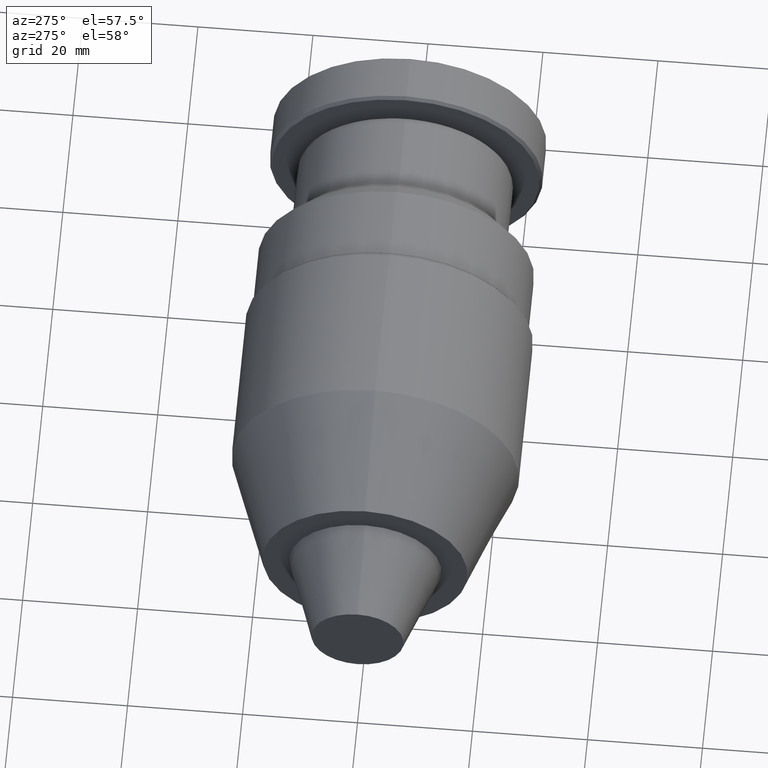
[diagram: clean part render]
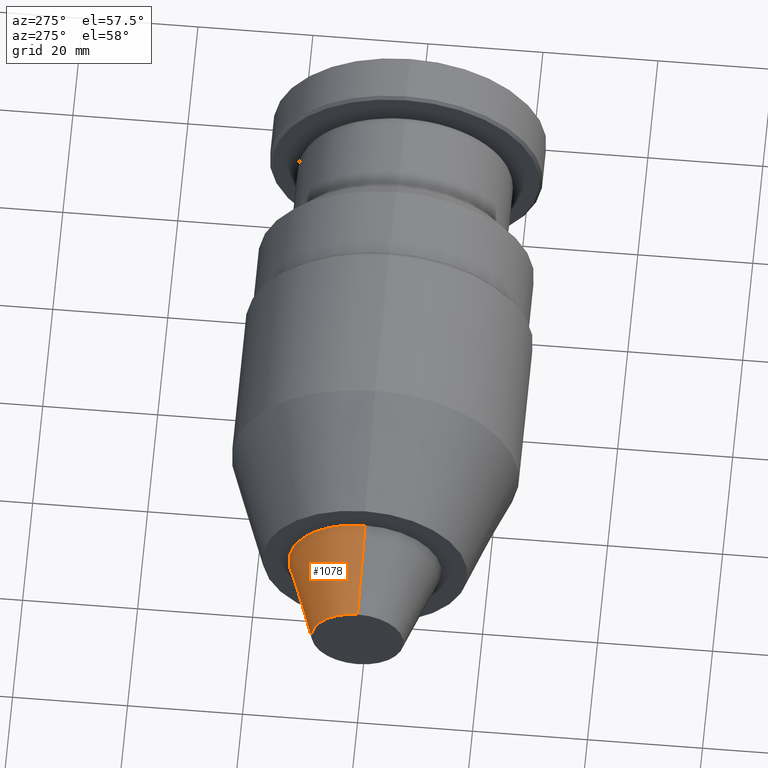
[diagram: same view with one face highlighted and labeled with its STEP entity id]
A machine part, auxiliary view. The second image highlights one B-rep face of the part: STEP entity #1078.
In plain terms, the highlighted conical surface has half-angle 19.471 deg.
Its self-contained STEP definition (entity closure, byte-faithful):
#12 = VERTEX_POINT ( 'NONE', #1147 ) ;
#43 = AXIS2_PLACEMENT_3D ( 'NONE', #527, #1037, #1421 ) ;
#81 = ORIENTED_EDGE ( 'NONE', *, *, #689, .T. ) ;
#144 = FACE_OUTER_BOUND ( 'NONE', #897, .T. ) ;
#297 = CARTESIAN_POINT ( 'NONE',  ( 0.0000000000000000000, 9.797174393178825700E-016, 8.000000000000000000 ) ) ;
#319 = CONICAL_SURFACE ( 'NONE', #1012, 8.000000000000000000, 0.3398368983786193600 ) ;
#349 = DIRECTION ( 'NONE',  ( 1.000000000000000000, 0.0000000000000000000, -0.0000000000000000000 ) ) ;
#362 = VECTOR ( 'NONE', #1432, 1000.000000000000000 ) ;
#397 = EDGE_CURVE ( 'NONE', #423, #591, #1210, .T. ) ;
#423 = VERTEX_POINT ( 'NONE', #1507 ) ;
#427 = AXIS2_PLACEMENT_3D ( 'NONE', #994, #742, #491 ) ;
#490 = CARTESIAN_POINT ( 'NONE',  ( 14.99999999999990200, 1.629184458605959300E-015, 13.30330067199996700 ) ) ;
#491 = DIRECTION ( 'NONE',  ( 0.0000000000000000000, 0.0000000000000000000, -1.000000000000000000 ) ) ;
#527 = CARTESIAN_POINT ( 'NONE',  ( 14.99999999999990200, 0.0000000000000000000, 0.0000000000000000000 ) ) ;
#567 = VERTEX_POINT ( 'NONE', #490 ) ;
#591 = VERTEX_POINT ( 'NONE', #670 ) ;
#638 = EDGE_CURVE ( 'NONE', #591, #12, #1194, .T. ) ;
#670 = CARTESIAN_POINT ( 'NONE',  ( 0.0000000000000000000, 0.0000000000000000000, -8.000000000000000000 ) ) ;
#689 = EDGE_CURVE ( 'NONE', #423, #567, #744, .T. ) ;
#701 = EDGE_CURVE ( 'NONE', #12, #567, #1382, .T. ) ;
#742 = DIRECTION ( 'NONE',  ( -1.000000000000000000, -0.0000000000000000000, 0.0000000000000000000 ) ) ;
#744 = LINE ( 'NONE', #297, #1559 ) ;
#827 = ORIENTED_EDGE ( 'NONE', *, *, #638, .F. ) ;
#897 = EDGE_LOOP ( 'NONE', ( #1152, #81, #1320, #827 ) ) ;
#917 = CARTESIAN_POINT ( 'NONE',  ( 0.0000000000000000000, 0.0000000000000000000, -8.000000000000000000 ) ) ;
#994 = CARTESIAN_POINT ( 'NONE',  ( 0.0000000000000000000, 0.0000000000000000000, 0.0000000000000000000 ) ) ;
#1012 = AXIS2_PLACEMENT_3D ( 'NONE', #1161, #349, #1440 ) ;
#1037 = DIRECTION ( 'NONE',  ( 1.000000000000000000, 0.0000000000000000000, -0.0000000000000000000 ) ) ;
#1078 = ADVANCED_FACE ( 'NONE', ( #144 ), #319, .T. ) ;
#1147 = CARTESIAN_POINT ( 'NONE',  ( 14.99999999999990200, 0.0000000000000000000, -13.30330067199996700 ) ) ;
#1152 = ORIENTED_EDGE ( 'NONE', *, *, #397, .F. ) ;
#1161 = CARTESIAN_POINT ( 'NONE',  ( 0.0000000000000000000, 0.0000000000000000000, 0.0000000000000000000 ) ) ;
#1194 = LINE ( 'NONE', #917, #362 ) ;
#1210 = CIRCLE ( 'NONE', #427, 8.000000000000000000 ) ;
#1297 = DIRECTION ( 'NONE',  ( 0.9428090452738975300, 4.082155869279196700E-017, 0.3333333228912493400 ) ) ;
#1320 = ORIENTED_EDGE ( 'NONE', *, *, #701, .F. ) ;
#1382 = CIRCLE ( 'NONE', #43, 13.30330067199996700 ) ;
#1421 = DIRECTION ( 'NONE',  ( 0.0000000000000000000, 0.0000000000000000000, -1.000000000000000000 ) ) ;
#1432 = DIRECTION ( 'NONE',  ( 0.9428090452738975300, 0.0000000000000000000, -0.3333333228912493400 ) ) ;
#1440 = DIRECTION ( 'NONE',  ( 0.0000000000000000000, 0.0000000000000000000, -1.000000000000000000 ) ) ;
#1507 = CARTESIAN_POINT ( 'NONE',  ( 0.0000000000000000000, 1.304450948961920700E-015, 8.000000000000000000 ) ) ;
#1559 = VECTOR ( 'NONE', #1297, 1000.000000000000000 ) ;